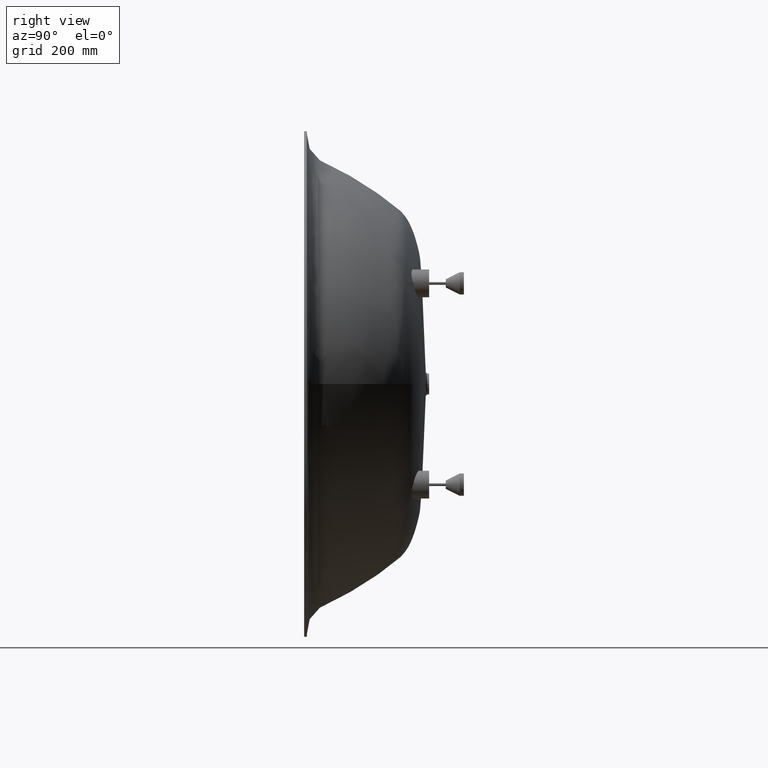
[diagram: clean part render]
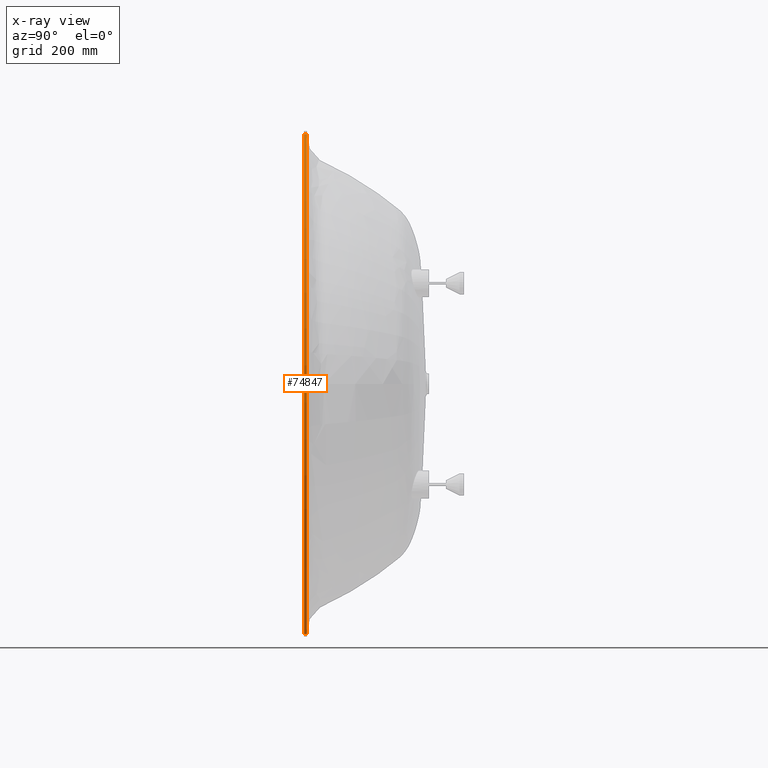
[diagram: x-ray — body ghosted, one internal face saturated and labeled with its STEP entity id]
A machine part, right view, then the same camera in x-ray: the body is ghosted and one INTERNAL B-rep face — a face not visible from any outside direction — is saturated and labeled: STEP entity #74847.
In plain terms, the highlighted cylindrical surface (partial cylindrical patch) has radius 900 mm, axis along (-0, -1, -0).
Its self-contained STEP definition (entity closure, byte-faithful):
#311 = DIRECTION ( 'NONE',  ( -0.0000000000000000000, -1.000000000000000000, -0.0000000000000000000 ) ) ;
#645 = DIRECTION ( 'NONE',  ( 0.0000000000000000000, 1.000000000000000000, 0.0000000000000000000 ) ) ;
#2238 = DIRECTION ( 'NONE',  ( -0.0000000000000000000, -1.000000000000000000, -0.0000000000000000000 ) ) ;
#8997 = AXIS2_PLACEMENT_3D ( 'NONE', #44623, #62089, #62345 ) ;
#13349 = CARTESIAN_POINT ( 'NONE',  ( 0.0000000000000000000, 0.0000000000000000000, 0.0000000000000000000 ) ) ;
#14690 = ORIENTED_EDGE ( 'NONE', *, *, #57715, .T. ) ;
#19278 = DIRECTION ( 'NONE',  ( 0.0000000000000000000, 0.0000000000000000000, 1.000000000000000000 ) ) ;
#21703 = LINE ( 'NONE', #37401, #66701 ) ;
#27332 = VERTEX_POINT ( 'NONE', #47526 ) ;
#27477 = EDGE_CURVE ( 'NONE', #55328, #34741, #43964, .T. ) ;
#28624 = ORIENTED_EDGE ( 'NONE', *, *, #52528, .T. ) ;
#29815 = CARTESIAN_POINT ( 'NONE',  ( 1.102182119232617800E-013, 10.00000000000000000, 900.0000000000000000 ) ) ;
#32813 = CARTESIAN_POINT ( 'NONE',  ( 0.0000000000000000000, 10.00000000000000000, -900.0000000000000000 ) ) ;
#34741 = VERTEX_POINT ( 'NONE', #40409 ) ;
#35803 = CARTESIAN_POINT ( 'NONE',  ( 0.0000000000000000000, 10.00000000000000000, 0.0000000000000000000 ) ) ;
#37401 = CARTESIAN_POINT ( 'NONE',  ( 0.0000000000000000000, 10.00000000000000000, -900.0000000000000000 ) ) ;
#40409 = CARTESIAN_POINT ( 'NONE',  ( 1.102182119232617800E-013, 0.0000000000000000000, 900.0000000000000000 ) ) ;
#41708 = DIRECTION ( 'NONE',  ( 0.0000000000000000000, 0.0000000000000000000, 1.000000000000000000 ) ) ;
#43822 = ORIENTED_EDGE ( 'NONE', *, *, #63995, .F. ) ;
#43964 = LINE ( 'NONE', #29815, #71522 ) ;
#44623 = CARTESIAN_POINT ( 'NONE',  ( 0.0000000000000000000, 10.00000000000000000, 0.0000000000000000000 ) ) ;
#45690 = AXIS2_PLACEMENT_3D ( 'NONE', #35803, #645, #41708 ) ;
#47526 = CARTESIAN_POINT ( 'NONE',  ( 0.0000000000000000000, 0.0000000000000000000, -900.0000000000000000 ) ) ;
#48356 = CYLINDRICAL_SURFACE ( 'NONE', #8997, 900.0000000000000000 ) ;
#49166 = FACE_OUTER_BOUND ( 'NONE', #52426, .T. ) ;
#52426 = EDGE_LOOP ( 'NONE', ( #58176, #14690, #28624, #43822 ) ) ;
#52528 = EDGE_CURVE ( 'NONE', #73700, #27332, #21703, .T. ) ;
#53805 = CIRCLE ( 'NONE', #75297, 900.0000000000000000 ) ;
#54473 = DIRECTION ( 'NONE',  ( 0.0000000000000000000, 1.000000000000000000, 0.0000000000000000000 ) ) ;
#55328 = VERTEX_POINT ( 'NONE', #61043 ) ;
#57715 = EDGE_CURVE ( 'NONE', #55328, #73700, #75011, .T. ) ;
#58176 = ORIENTED_EDGE ( 'NONE', *, *, #27477, .F. ) ;
#61043 = CARTESIAN_POINT ( 'NONE',  ( 1.102182119232617800E-013, 10.00000000000000000, 900.0000000000000000 ) ) ;
#62089 = DIRECTION ( 'NONE',  ( -0.0000000000000000000, -1.000000000000000000, -0.0000000000000000000 ) ) ;
#62345 = DIRECTION ( 'NONE',  ( 0.0000000000000000000, 0.0000000000000000000, -1.000000000000000000 ) ) ;
#63995 = EDGE_CURVE ( 'NONE', #34741, #27332, #53805, .T. ) ;
#66701 = VECTOR ( 'NONE', #2238, 1000.000000000000000 ) ;
#71522 = VECTOR ( 'NONE', #311, 1000.000000000000000 ) ;
#73700 = VERTEX_POINT ( 'NONE', #32813 ) ;
#74847 = ADVANCED_FACE ( 'NONE', ( #49166 ), #48356, .F. ) ;
#75011 = CIRCLE ( 'NONE', #45690, 900.0000000000000000 ) ;
#75297 = AXIS2_PLACEMENT_3D ( 'NONE', #13349, #54473, #19278 ) ;